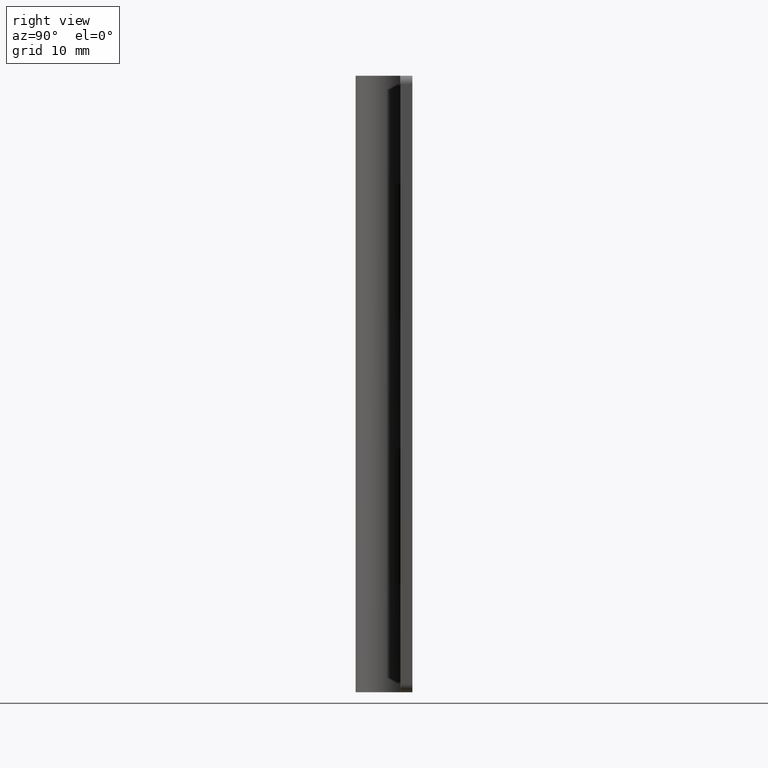
[diagram: clean part render]
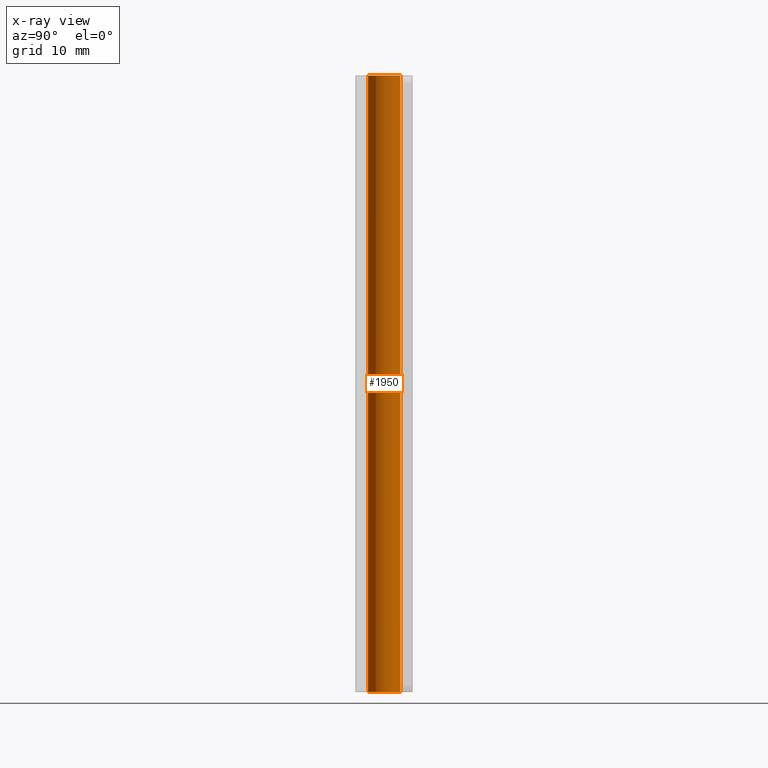
[diagram: x-ray — body ghosted, one internal face saturated and labeled with its STEP entity id]
A machine part, right view, then the same camera in x-ray: the body is ghosted and one INTERNAL B-rep face — a face not visible from any outside direction — is saturated and labeled: STEP entity #1950.
In plain terms, the highlighted face is a freeform B-spline surface patch.
Its self-contained STEP definition (entity closure, byte-faithful):
#1848=CARTESIAN_POINT('',(0.236068469313517,-1.986019052727332,77.899991799999725));
#1849=CARTESIAN_POINT('',(0.179229457275955,-1.992775230897211,77.899991799999697));
#1850=CARTESIAN_POINT('',(0.122097079069714,-1.996269596843733,77.899991799999697));
#1851=CARTESIAN_POINT('',(-1.874172517774020,-2.118366675913447,77.899991799999697));
#1852=CARTESIAN_POINT('',(-1.996269596843733,-0.122097079069714,77.899991799999697));
#1853=CARTESIAN_POINT('',(-2.118366675913447,1.874172517774020,77.899991799999697));
#1854=CARTESIAN_POINT('',(-0.122097079069714,1.996269596843733,77.899991799999697));
#1855=CARTESIAN_POINT('',(0.236068469313517,-1.986019052727332,-1.947499794999999));
#1856=CARTESIAN_POINT('',(0.179229457275955,-1.992775230897211,-1.947499794999999));
#1857=CARTESIAN_POINT('',(0.122097079069714,-1.996269596843733,-1.947499794999999));
#1858=CARTESIAN_POINT('',(-1.874172517774020,-2.118366675913447,-1.947499794999998));
#1859=CARTESIAN_POINT('',(-1.996269596843733,-0.122097079069714,-1.947499794999999));
#1860=CARTESIAN_POINT('',(-2.118366675913447,1.874172517774020,-1.947499794999998));
#1861=CARTESIAN_POINT('',(-0.122097079069714,1.996269596843733,-1.947499794999999));
#1869=(BOUNDED_SURFACE()B_SPLINE_SURFACE(2,1,((#1848,#1855),(#1849,#1856),(#1850,#1857),(#1851,#1858),(#1852,#1859),(#1853,#1860),(#1854,#1861)),.UNSPECIFIED.,.F.,.F.,.U.)B_SPLINE_SURFACE_WITH_KNOTS((3,2,2,3),(2,2),(0.0,0.132548339959391,3.446256838944149,6.759965337928908),(0.0,79.847491594999724),.UNSPECIFIED.)GEOMETRIC_REPRESENTATION_ITEM()RATIONAL_B_SPLINE_SURFACE(((0.977505800795127,0.977505800795127),(0.988284271247462,0.988284271247462),(1.0,1.0),(0.707106781186548,0.707106781186548),(1.0,1.0),(0.707106781186548,0.707106781186548),(1.0,1.0)))REPRESENTATION_ITEM('')SURFACE());
#1870=CARTESIAN_POINT('',(0.236068469355060,-1.986019052722395,2.157965E-015));
#1871=VERTEX_POINT('',#1870);
#1872=CARTESIAN_POINT('',(-2.0,0.0,0.0));
#1873=VERTEX_POINT('',#1872);
#1874=CARTESIAN_POINT('',(0.236068469355060,-1.986019052722395,2.157965E-015));
#1875=CARTESIAN_POINT('',(0.118448239345803,-2.0,0.0));
#1876=CARTESIAN_POINT('',(0.0,-2.0,0.0));
#1877=CARTESIAN_POINT('',(-2.000000000000000,-2.000000000000000,0.0));
#1878=CARTESIAN_POINT('',(-2.0,0.0,0.0));
#1886=(BOUNDED_CURVE()B_SPLINE_CURVE(2,(#1874,#1875,#1876,#1877,#1878),.UNSPECIFIED.,.F.,.U.)B_SPLINE_CURVE_WITH_KNOTS((3,2,3),(0.229562473508574,0.250000000000000,0.500000000000000),.UNSPECIFIED.)CURVE()GEOMETRIC_REPRESENTATION_ITEM()RATIONAL_B_SPLINE_CURVE((0.956026754174028,0.976055948325364,1.0,0.707106781186548,1.0))REPRESENTATION_ITEM(''));
#1887=EDGE_CURVE('',#1871,#1873,#1886,.T.);
#1888=ORIENTED_EDGE('',*,*,#1887,.F.);
#1889=CARTESIAN_POINT('',(0.236068469355060,-1.986019052722395,75.999991999999708));
#1890=VERTEX_POINT('',#1889);
#1891=CARTESIAN_POINT('',(0.236068469355060,-1.986019052722395,75.999991999999708));
#1892=CARTESIAN_POINT('',(0.236068469355060,-1.986019052722395,2.157965E-015));
#1893=QUASI_UNIFORM_CURVE('',1,(#1891,#1892),.UNSPECIFIED.,.F.,.U.);
#1894=EDGE_CURVE('',#1890,#1871,#1893,.T.);
#1895=ORIENTED_EDGE('',*,*,#1894,.F.);
#1896=CARTESIAN_POINT('',(-2.0,0.0,75.999991999999693));
#1897=VERTEX_POINT('',#1896);
#1898=CARTESIAN_POINT('',(0.236068469355060,-1.986019052722395,75.999991999999722));
#1899=CARTESIAN_POINT('',(0.118448239345803,-2.0,75.999991999999693));
#1900=CARTESIAN_POINT('',(0.0,-2.0,75.999991999999693));
#1901=CARTESIAN_POINT('',(-2.000000000000000,-2.000000000000000,75.999991999999693));
#1902=CARTESIAN_POINT('',(-2.0,0.0,75.999991999999693));
#1910=(BOUNDED_CURVE()B_SPLINE_CURVE(2,(#1898,#1899,#1900,#1901,#1902),.UNSPECIFIED.,.F.,.U.)B_SPLINE_CURVE_WITH_KNOTS((3,2,3),(0.229562473508574,0.250000000000000,0.500000000000000),.UNSPECIFIED.)CURVE()GEOMETRIC_REPRESENTATION_ITEM()RATIONAL_B_SPLINE_CURVE((0.956026754174028,0.976055948325364,1.0,0.707106781186548,1.0))REPRESENTATION_ITEM(''));
#1911=EDGE_CURVE('',#1890,#1897,#1910,.T.);
#1912=ORIENTED_EDGE('',*,*,#1911,.T.);
#1913=CARTESIAN_POINT('',(-0.122097079489423,1.996269596818063,75.999991999999693));
#1914=VERTEX_POINT('',#1913);
#1915=CARTESIAN_POINT('',(-2.0,0.0,75.999991999999693));
#1916=CARTESIAN_POINT('',(-2.000000000000000,1.881412133018796,75.999991999999693));
#1917=CARTESIAN_POINT('',(-0.122097079489423,1.996269596818063,75.999991999999693));
#1925=(BOUNDED_CURVE()B_SPLINE_CURVE(2,(#1915,#1916,#1917),.UNSPECIFIED.,.F.,.U.)B_SPLINE_CURVE_WITH_KNOTS((3,3),(0.500000000000000,0.739332962169414),.UNSPECIFIED.)CURVE()GEOMETRIC_REPRESENTATION_ITEM()RATIONAL_B_SPLINE_CURVE((1.0,0.719603993368168,0.976072041517704))REPRESENTATION_ITEM(''));
#1926=EDGE_CURVE('',#1897,#1914,#1925,.T.);
#1927=ORIENTED_EDGE('',*,*,#1926,.T.);
#1928=CARTESIAN_POINT('',(-0.122097079489423,1.996269596818063,2.109424E-015));
#1929=VERTEX_POINT('',#1928);
#1930=CARTESIAN_POINT('',(-0.122097079489423,1.996269596818063,75.999991999999693));
#1931=CARTESIAN_POINT('',(-0.122097079489423,1.996269596818063,2.109424E-015));
#1932=QUASI_UNIFORM_CURVE('',1,(#1930,#1931),.UNSPECIFIED.,.F.,.U.);
#1933=EDGE_CURVE('',#1914,#1929,#1932,.T.);
#1934=ORIENTED_EDGE('',*,*,#1933,.T.);
#1935=CARTESIAN_POINT('',(-2.0,0.0,0.0));
#1936=CARTESIAN_POINT('',(-2.000000000000000,1.881412133018796,0.0));
#1937=CARTESIAN_POINT('',(-0.122097079489423,1.996269596818063,2.109424E-015));
#1945=(BOUNDED_CURVE()B_SPLINE_CURVE(2,(#1935,#1936,#1937),.UNSPECIFIED.,.F.,.U.)B_SPLINE_CURVE_WITH_KNOTS((3,3),(0.500000000000000,0.739332962169414),.UNSPECIFIED.)CURVE()GEOMETRIC_REPRESENTATION_ITEM()RATIONAL_B_SPLINE_CURVE((1.0,0.719603993368168,0.976072041517704))REPRESENTATION_ITEM(''));
#1946=EDGE_CURVE('',#1873,#1929,#1945,.T.);
#1947=ORIENTED_EDGE('',*,*,#1946,.F.);
#1948=EDGE_LOOP('',(#1888,#1895,#1912,#1927,#1934,#1947));
#1949=FACE_OUTER_BOUND('',#1948,.T.);
#1950=ADVANCED_FACE('',(#1949),#1869,.T.);